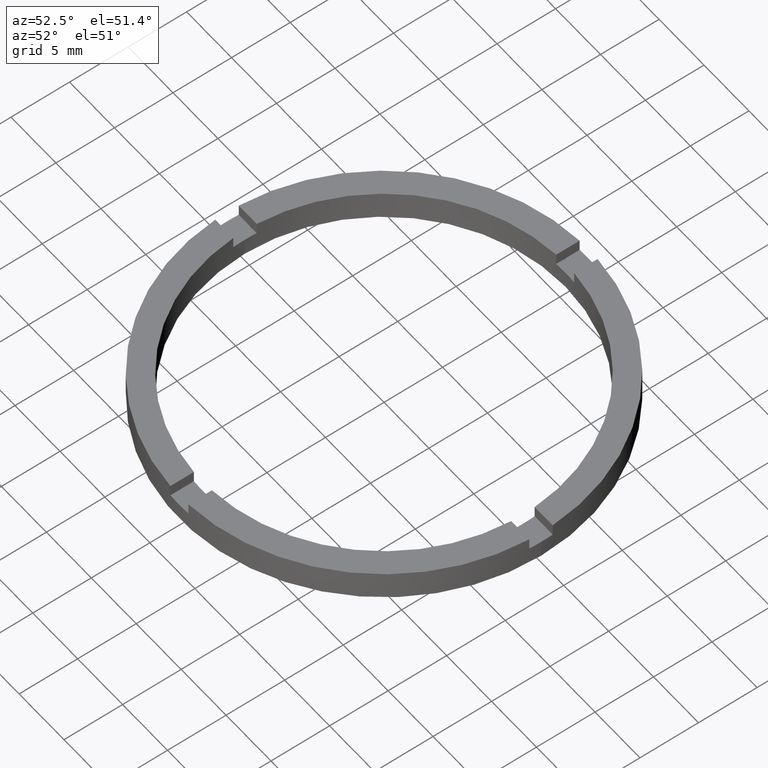
[diagram: clean part render]
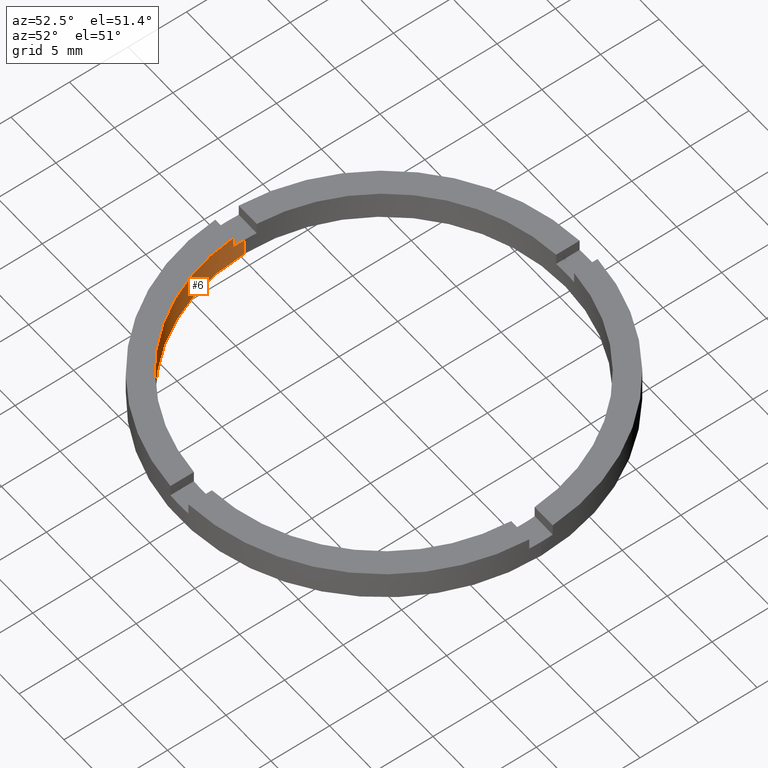
[diagram: same view with one face highlighted and labeled with its STEP entity id]
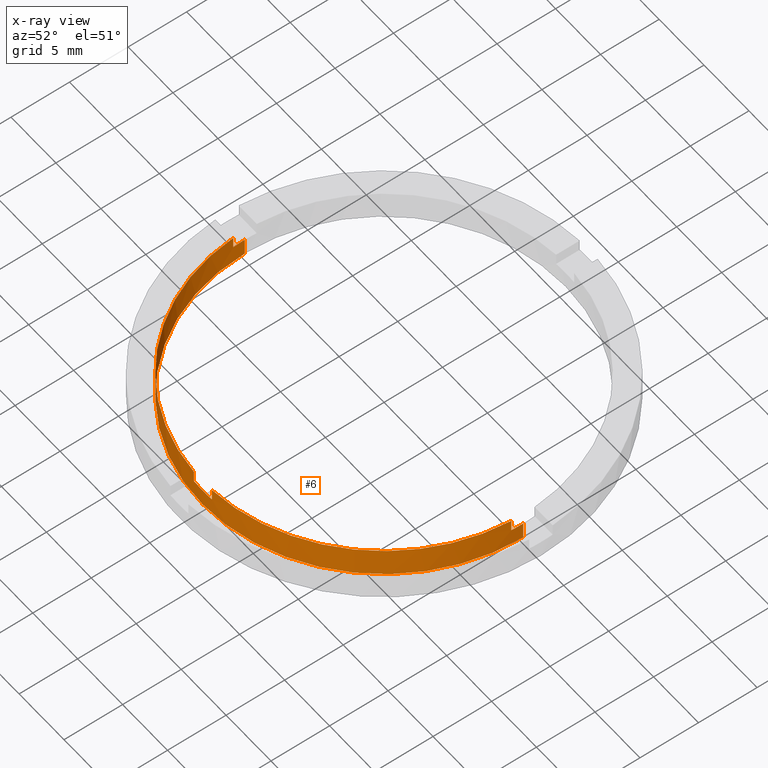
[diagram: x-ray of the same camera — body ghosted, the highlighted face saturated]
A machine part, auxiliary view. The second image highlights one B-rep face of the part: STEP entity #6.
The next image is the same camera in x-ray: the body ghosted, the highlighted face saturated — about 0% of this face is hidden behind the body in this view.
In plain terms, the highlighted cylindrical surface (partial cylindrical patch) has radius 15.5 mm, axis along (-0, -0, -1).
Its self-contained STEP definition (entity closure, byte-faithful):
#3 = DIRECTION ( 'NONE',  ( 1.000000000000000000, 0.000000000000000000, 0.000000000000000000 ) ) ;
#5 = DIRECTION ( 'NONE',  ( -0.000000000000000000, -0.000000000000000000, -1.000000000000000000 ) ) ;
#6 = ADVANCED_FACE ( 'NONE', ( #150 ), #426, .F. ) ;
#8 = VERTEX_POINT ( 'NONE', #39 ) ;
#9 = DIRECTION ( 'NONE',  ( 0.000000000000000000, 0.000000000000000000, 1.000000000000000000 ) ) ;
#14 = CARTESIAN_POINT ( 'NONE',  ( -15.50000000000000000, 0.000000000000000000, 0.000000000000000000 ) ) ;
#16 = LINE ( 'NONE', #338, #561 ) ;
#20 = VECTOR ( 'NONE', #537, 1000.000000000000000 ) ;
#24 = CIRCLE ( 'NONE', #739, 15.50000000000000000 ) ;
#25 = AXIS2_PLACEMENT_3D ( 'NONE', #579, #611, #335 ) ;
#28 = DIRECTION ( 'NONE',  ( -1.000000000000000000, 0.000000000000000000, 0.000000000000000000 ) ) ;
#38 = VECTOR ( 'NONE', #521, 1000.000000000000000 ) ;
#39 = CARTESIAN_POINT ( 'NONE',  ( 0.9999999999998366862, -15.46770829825802807, 2.500000000000000000 ) ) ;
#46 = DIRECTION ( 'NONE',  ( -0.000000000000000000, -0.000000000000000000, -1.000000000000000000 ) ) ;
#47 = CARTESIAN_POINT ( 'NONE',  ( 0.000000000000000000, 0.000000000000000000, 2.500000000000000000 ) ) ;
#50 = CARTESIAN_POINT ( 'NONE',  ( 0.9999999999998371303, -15.46770829825802984, 2.500000000000000000 ) ) ;
#52 = CARTESIAN_POINT ( 'NONE',  ( 0.9999999999998366862, -15.46770829825802807, 1.500000000000000000 ) ) ;
#63 = EDGE_CURVE ( 'NONE', #674, #146, #680, .T. ) ;
#87 = CARTESIAN_POINT ( 'NONE',  ( -1.000000000000162537, -15.46770829825800675, 1.500000000000000000 ) ) ;
#123 = CARTESIAN_POINT ( 'NONE',  ( 15.46770829825800853, -1.000000000000158984, 1.500000000000000000 ) ) ;
#126 = EDGE_CURVE ( 'NONE', #8, #432, #415, .T. ) ;
#130 = LINE ( 'NONE', #240, #404 ) ;
#131 = EDGE_CURVE ( 'NONE', #402, #432, #130, .T. ) ;
#144 = ORIENTED_EDGE ( 'NONE', *, *, #264, .T. ) ;
#146 = VERTEX_POINT ( 'NONE', #14 ) ;
#150 = FACE_OUTER_BOUND ( 'NONE', #759, .T. ) ;
#151 = CARTESIAN_POINT ( 'NONE',  ( -15.46770829825801741, -1.000000000000023315, 1.500000000000000000 ) ) ;
#155 = VECTOR ( 'NONE', #5, 1000.000000000000000 ) ;
#161 = VERTEX_POINT ( 'NONE', #87 ) ;
#200 = ORIENTED_EDGE ( 'NONE', *, *, #563, .F. ) ;
#201 = AXIS2_PLACEMENT_3D ( 'NONE', #591, #643, #3 ) ;
#214 = CARTESIAN_POINT ( 'NONE',  ( -1.000000000000162759, -15.46770829825800853, 2.500000000000000000 ) ) ;
#225 = ORIENTED_EDGE ( 'NONE', *, *, #569, .F. ) ;
#240 = CARTESIAN_POINT ( 'NONE',  ( 15.46770829825800853, -1.000000000000158984, 2.500000000000000000 ) ) ;
#264 = EDGE_CURVE ( 'NONE', #674, #525, #640, .T. ) ;
#282 = AXIS2_PLACEMENT_3D ( 'NONE', #339, #574, #393 ) ;
#297 = LINE ( 'NONE', #50, #38 ) ;
#301 = LINE ( 'NONE', #624, #305 ) ;
#305 = VECTOR ( 'NONE', #374, 1000.000000000000000 ) ;
#306 = EDGE_CURVE ( 'NONE', #402, #424, #656, .T. ) ;
#335 = DIRECTION ( 'NONE',  ( 1.000000000000000000, 0.000000000000000000, 0.000000000000000000 ) ) ;
#338 = CARTESIAN_POINT ( 'NONE',  ( -15.46770829825801741, -1.000000000000023315, 2.500000000000000000 ) ) ;
#339 = CARTESIAN_POINT ( 'NONE',  ( 0.000000000000000000, 0.000000000000000000, 1.500000000000000000 ) ) ;
#344 = CARTESIAN_POINT ( 'NONE',  ( -15.46770829825801741, -1.000000000000023315, 2.500000000000000000 ) ) ;
#350 = DIRECTION ( 'NONE',  ( 1.000000000000000000, 0.000000000000000000, 0.000000000000000000 ) ) ;
#369 = CARTESIAN_POINT ( 'NONE',  ( 15.50000000000000000, 1.898202538678397557E-15, 0.000000000000000000 ) ) ;
#370 = DIRECTION ( 'NONE',  ( -0.000000000000000000, 0.000000000000000000, 1.000000000000000000 ) ) ;
#373 = AXIS2_PLACEMENT_3D ( 'NONE', #570, #752, #28 ) ;
#374 = DIRECTION ( 'NONE',  ( -0.000000000000000000, -0.000000000000000000, -1.000000000000000000 ) ) ;
#389 = CIRCLE ( 'NONE', #201, 15.50000000000000000 ) ;
#393 = DIRECTION ( 'NONE',  ( 1.000000000000000000, 0.000000000000000000, 0.000000000000000000 ) ) ;
#402 = VERTEX_POINT ( 'NONE', #123 ) ;
#403 = CARTESIAN_POINT ( 'NONE',  ( 0.000000000000000000, 0.000000000000000000, 1.500000000000000000 ) ) ;
#404 = VECTOR ( 'NONE', #486, 1000.000000000000000 ) ;
#405 = VERTEX_POINT ( 'NONE', #369 ) ;
#415 = CIRCLE ( 'NONE', #744, 15.50000000000000000 ) ;
#418 = ORIENTED_EDGE ( 'NONE', *, *, #306, .T. ) ;
#424 = VERTEX_POINT ( 'NONE', #671 ) ;
#426 = CYLINDRICAL_SURFACE ( 'NONE', #373, 15.50000000000000000 ) ;
#431 = CARTESIAN_POINT ( 'NONE',  ( -1.000000000000162537, -15.46770829825800675, 2.500000000000000000 ) ) ;
#432 = VERTEX_POINT ( 'NONE', #562 ) ;
#458 = AXIS2_PLACEMENT_3D ( 'NONE', #726, #9, #350 ) ;
#462 = ORIENTED_EDGE ( 'NONE', *, *, #583, .T. ) ;
#479 = DIRECTION ( 'NONE',  ( 1.000000000000000000, 0.000000000000000000, 0.000000000000000000 ) ) ;
#486 = DIRECTION ( 'NONE',  ( 0.000000000000000000, 0.000000000000000000, 1.000000000000000000 ) ) ;
#496 = DIRECTION ( 'NONE',  ( 1.000000000000000000, 0.000000000000000000, 0.000000000000000000 ) ) ;
#500 = VERTEX_POINT ( 'NONE', #431 ) ;
#516 = EDGE_CURVE ( 'NONE', #8, #703, #297, .T. ) ;
#521 = DIRECTION ( 'NONE',  ( -0.000000000000000000, -0.000000000000000000, -1.000000000000000000 ) ) ;
#525 = VERTEX_POINT ( 'NONE', #151 ) ;
#537 = DIRECTION ( 'NONE',  ( 0.000000000000000000, 0.000000000000000000, 1.000000000000000000 ) ) ;
#541 = DIRECTION ( 'NONE',  ( 0.000000000000000000, 0.000000000000000000, 1.000000000000000000 ) ) ;
#543 = CARTESIAN_POINT ( 'NONE',  ( -15.50000000000000000, 0.000000000000000000, 1.500000000000000000 ) ) ;
#547 = LINE ( 'NONE', #214, #20 ) ;
#552 = CIRCLE ( 'NONE', #25, 15.50000000000000000 ) ;
#561 = VECTOR ( 'NONE', #46, 1000.000000000000000 ) ;
#562 = CARTESIAN_POINT ( 'NONE',  ( 15.46770829825800853, -1.000000000000158984, 2.500000000000000000 ) ) ;
#563 = EDGE_CURVE ( 'NONE', #664, #525, #16, .T. ) ;
#569 = EDGE_CURVE ( 'NONE', #161, #500, #547, .T. ) ;
#570 = CARTESIAN_POINT ( 'NONE',  ( 0.000000000000000000, 0.000000000000000000, 2.500000000000000000 ) ) ;
#574 = DIRECTION ( 'NONE',  ( 0.000000000000000000, 0.000000000000000000, 1.000000000000000000 ) ) ;
#579 = CARTESIAN_POINT ( 'NONE',  ( 0.000000000000000000, 0.000000000000000000, 2.500000000000000000 ) ) ;
#583 = EDGE_CURVE ( 'NONE', #161, #703, #24, .T. ) ;
#591 = CARTESIAN_POINT ( 'NONE',  ( 0.000000000000000000, 0.000000000000000000, 0.000000000000000000 ) ) ;
#594 = CARTESIAN_POINT ( 'NONE',  ( -15.50000000000000000, 0.000000000000000000, 2.500000000000000000 ) ) ;
#595 = EDGE_CURVE ( 'NONE', #664, #500, #552, .T. ) ;
#611 = DIRECTION ( 'NONE',  ( 0.000000000000000000, 0.000000000000000000, 1.000000000000000000 ) ) ;
#624 = CARTESIAN_POINT ( 'NONE',  ( 15.50000000000000000, 1.898202538678397557E-15, 2.500000000000000000 ) ) ;
#630 = EDGE_CURVE ( 'NONE', #424, #405, #301, .T. ) ;
#640 = CIRCLE ( 'NONE', #458, 15.50000000000000000 ) ;
#642 = ORIENTED_EDGE ( 'NONE', *, *, #126, .T. ) ;
#643 = DIRECTION ( 'NONE',  ( 0.000000000000000000, 0.000000000000000000, 1.000000000000000000 ) ) ;
#654 = ORIENTED_EDGE ( 'NONE', *, *, #595, .T. ) ;
#656 = CIRCLE ( 'NONE', #282, 15.50000000000000000 ) ;
#659 = ORIENTED_EDGE ( 'NONE', *, *, #630, .T. ) ;
#664 = VERTEX_POINT ( 'NONE', #344 ) ;
#671 = CARTESIAN_POINT ( 'NONE',  ( 15.50000000000000000, 1.898202538678397557E-15, 1.500000000000000000 ) ) ;
#674 = VERTEX_POINT ( 'NONE', #543 ) ;
#680 = LINE ( 'NONE', #594, #155 ) ;
#693 = EDGE_CURVE ( 'NONE', #146, #405, #389, .T. ) ;
#703 = VERTEX_POINT ( 'NONE', #52 ) ;
#726 = CARTESIAN_POINT ( 'NONE',  ( 0.000000000000000000, 0.000000000000000000, 1.500000000000000000 ) ) ;
#739 = AXIS2_PLACEMENT_3D ( 'NONE', #403, #370, #479 ) ;
#740 = ORIENTED_EDGE ( 'NONE', *, *, #516, .F. ) ;
#742 = ORIENTED_EDGE ( 'NONE', *, *, #131, .F. ) ;
#744 = AXIS2_PLACEMENT_3D ( 'NONE', #47, #541, #496 ) ;
#746 = ORIENTED_EDGE ( 'NONE', *, *, #63, .F. ) ;
#752 = DIRECTION ( 'NONE',  ( -0.000000000000000000, -0.000000000000000000, -1.000000000000000000 ) ) ;
#754 = ORIENTED_EDGE ( 'NONE', *, *, #693, .F. ) ;
#759 = EDGE_LOOP ( 'NONE', ( #418, #659, #754, #746, #144, #200, #654, #225, #462, #740, #642, #742 ) ) ;